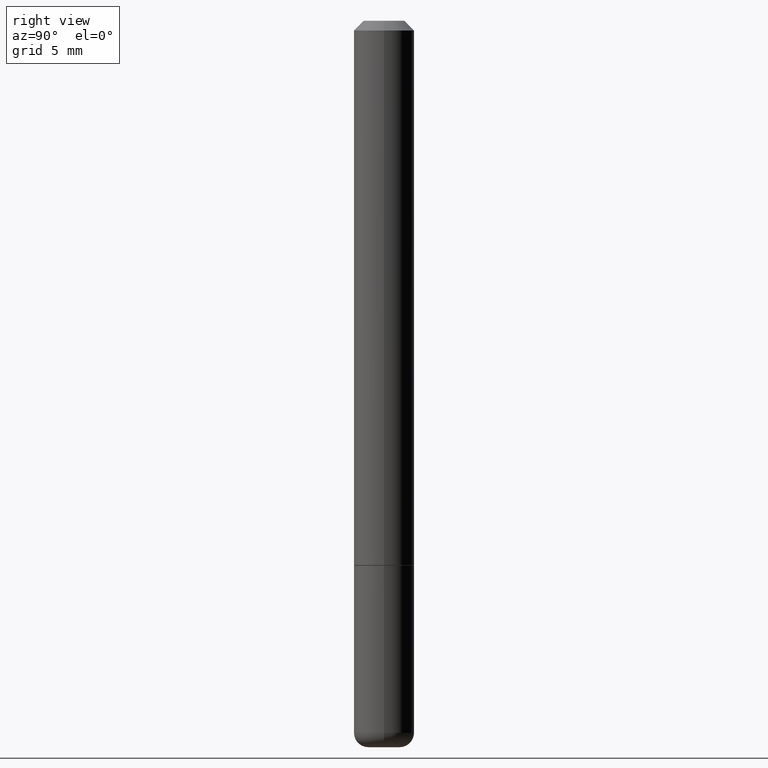
[diagram: clean part render]
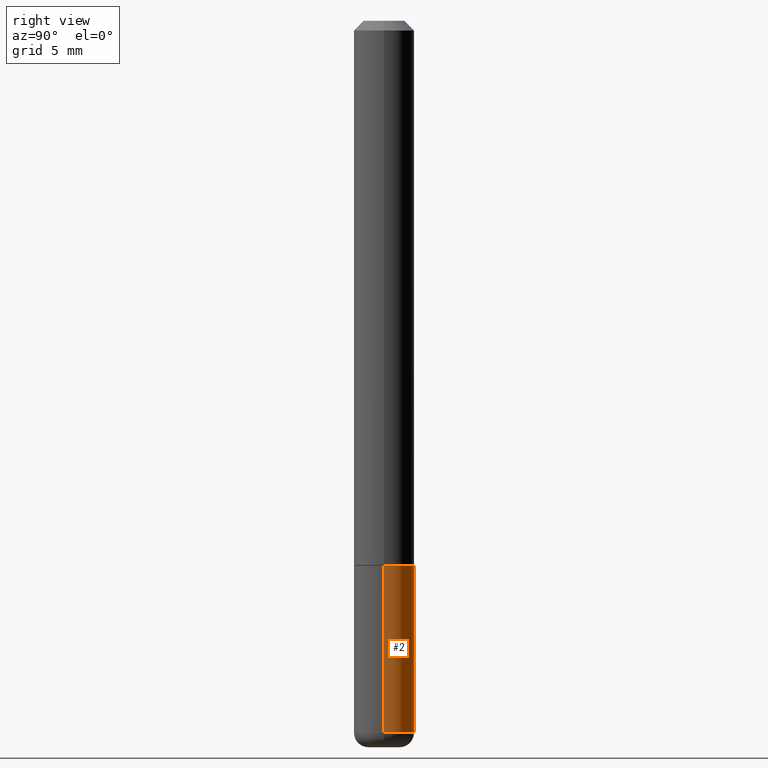
[diagram: same view with one face highlighted and labeled with its STEP entity id]
A machine part, right view. The second image highlights one B-rep face of the part: STEP entity #2.
In plain terms, the highlighted cylindrical surface (edge-blend (fillet) strip) has radius 1.5875 mm, axis along (-0, 0, 1).
Its self-contained STEP definition (entity closure, byte-faithful):
#2 = ADVANCED_FACE ( 'NONE', ( #337 ), #306, .T. ) ;
#4 = LINE ( 'NONE', #326, #348 ) ;
#5 = DIRECTION ( 'NONE',  ( 1.000000000000000000, -6.982962677686262766E-15, 0.000000000000000000 ) ) ;
#29 = DIRECTION ( 'NONE',  ( -2.445468806185136877E-29, 3.491481338843145188E-15, 1.000000000000000000 ) ) ;
#32 = AXIS2_PLACEMENT_3D ( 'NONE', #133, #329, #5 ) ;
#46 = ORIENTED_EDGE ( 'NONE', *, *, #250, .T. ) ;
#68 = ORIENTED_EDGE ( 'NONE', *, *, #303, .T. ) ;
#74 = VERTEX_POINT ( 'NONE', #281 ) ;
#80 = EDGE_LOOP ( 'NONE', ( #46, #68, #115, #146 ) ) ;
#107 = EDGE_CURVE ( 'NONE', #279, #241, #126, .T. ) ;
#115 = ORIENTED_EDGE ( 'NONE', *, *, #220, .F. ) ;
#125 = AXIS2_PLACEMENT_3D ( 'NONE', #379, #286, #154 ) ;
#126 = LINE ( 'NONE', #387, #195 ) ;
#128 = DIRECTION ( 'NONE',  ( -2.445468806185136877E-29, 3.491481338843145188E-15, 1.000000000000000000 ) ) ;
#130 = CARTESIAN_POINT ( 'NONE',  ( 3.594839145092150820E-29, -5.132477568099424807E-15, -1.470000000000000195 ) ) ;
#133 = CARTESIAN_POINT ( 'NONE',  ( 2.751152406958279232E-29, -3.927916506198539224E-15, -1.125000000000000222 ) ) ;
#146 = ORIENTED_EDGE ( 'NONE', *, *, #107, .F. ) ;
#154 = DIRECTION ( 'NONE',  ( 1.000000000000000000, -6.982962677686266711E-15, 4.876176775795935793E-29 ) ) ;
#187 = CARTESIAN_POINT ( 'NONE',  ( 0.06250000000000000000, -4.364351673553930894E-15, -1.125000000000000222 ) ) ;
#195 = VECTOR ( 'NONE', #29, 39.37007874015748143 ) ;
#220 = EDGE_CURVE ( 'NONE', #241, #74, #282, .T. ) ;
#241 = VERTEX_POINT ( 'NONE', #187 ) ;
#250 = EDGE_CURVE ( 'NONE', #279, #392, #264, .T. ) ;
#264 = CIRCLE ( 'NONE', #319, 0.06250000000000000000 ) ;
#279 = VERTEX_POINT ( 'NONE', #353 ) ;
#281 = CARTESIAN_POINT ( 'NONE',  ( -0.06250000000000000000, -4.086107827298919005E-15, -1.125000000000000222 ) ) ;
#282 = CIRCLE ( 'NONE', #32, 0.06250000000000000000 ) ;
#286 = DIRECTION ( 'NONE',  ( -2.445468806185136597E-29, 3.491481338843145583E-15, 1.000000000000000000 ) ) ;
#297 = DIRECTION ( 'NONE',  ( 1.000000000000000000, -6.982962677686262766E-15, 0.000000000000000000 ) ) ;
#303 = EDGE_CURVE ( 'NONE', #392, #74, #4, .T. ) ;
#306 = CYLINDRICAL_SURFACE ( 'NONE', #125, 0.06250000000000000000 ) ;
#319 = AXIS2_PLACEMENT_3D ( 'NONE', #130, #398, #297 ) ;
#326 = CARTESIAN_POINT ( 'NONE',  ( -0.06250000000000000000, 4.440892098500626162E-16, -3.074334431409316114E-30 ) ) ;
#329 = DIRECTION ( 'NONE',  ( -2.445468806185136597E-29, 3.491481338843145583E-15, 1.000000000000000000 ) ) ;
#337 = FACE_OUTER_BOUND ( 'NONE', #80, .T. ) ;
#348 = VECTOR ( 'NONE', #128, 39.37007874015748143 ) ;
#353 = CARTESIAN_POINT ( 'NONE',  ( 0.06249999999999999306, -5.568912735454815688E-15, -1.470000000000000195 ) ) ;
#372 = CARTESIAN_POINT ( 'NONE',  ( -0.06249999999999999306, -4.688388358249362191E-15, -1.470000000000000195 ) ) ;
#379 = CARTESIAN_POINT ( 'NONE',  ( 0.000000000000000000, 0.000000000000000000, 0.000000000000000000 ) ) ;
#387 = CARTESIAN_POINT ( 'NONE',  ( 0.06250000000000000000, -4.364351673553916694E-16, 3.047610484872459871E-30 ) ) ;
#392 = VERTEX_POINT ( 'NONE', #372 ) ;
#398 = DIRECTION ( 'NONE',  ( -2.445468806185136597E-29, 3.491481338843145583E-15, 1.000000000000000000 ) ) ;